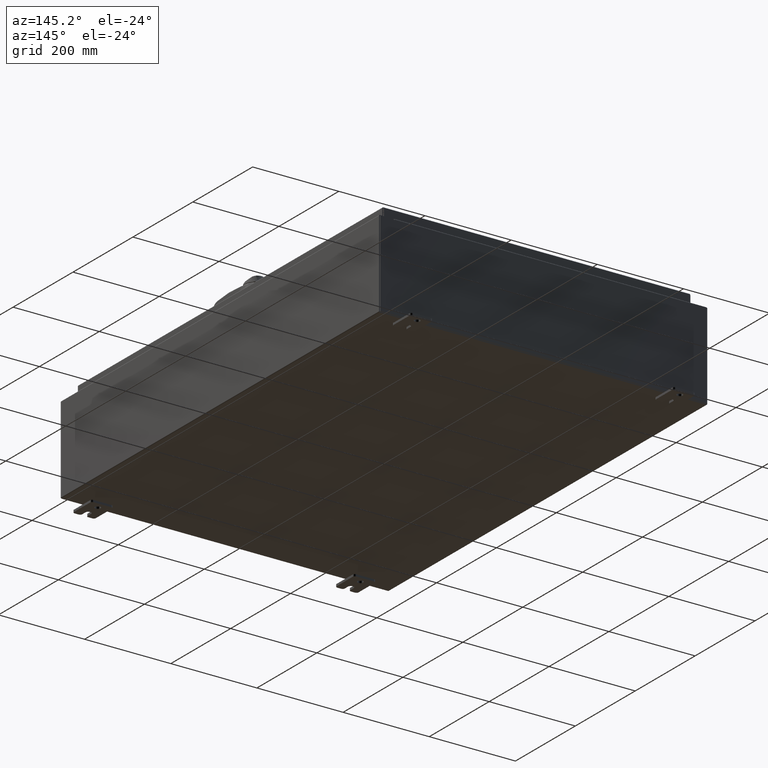
[diagram: clean part render]
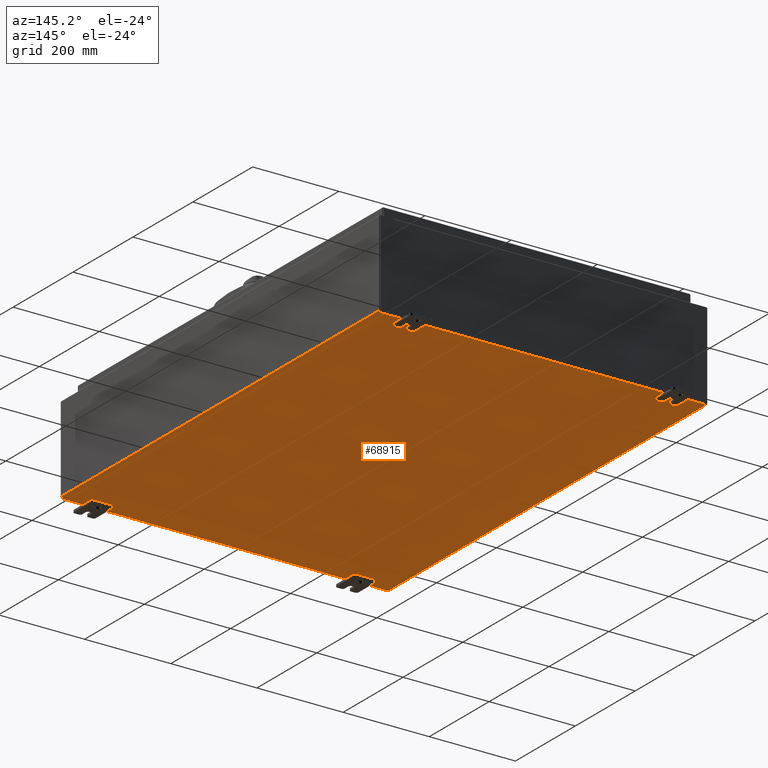
[diagram: same view with one face highlighted and labeled with its STEP entity id]
A machine part, auxiliary view. The second image highlights one B-rep face of the part: STEP entity #68915.
In plain terms, the highlighted planar face has unit normal (0, 0, -1).
Its self-contained STEP definition (entity closure, byte-faithful):
#6373 = AXIS2_PLACEMENT_3D ( 'NONE', #63042, #33448, #102973 ) ;
#6896 = LINE ( 'NONE', #59989, #59813 ) ;
#9650 = ORIENTED_EDGE ( 'NONE', *, *, #127551, .F. ) ;
#10395 = DIRECTION ( 'NONE',  ( -1.000000000000000000, -0.0000000000000000000, -0.0000000000000000000 ) ) ;
#13107 = CARTESIAN_POINT ( 'NONE',  ( -14.99999999999999800, -20.92529999999999300, -0.07470000000000000300 ) ) ;
#14148 = VERTEX_POINT ( 'NONE', #56274 ) ;
#16823 = DIRECTION ( 'NONE',  ( -0.0000000000000000000, 1.000000000000000000, -0.0000000000000000000 ) ) ;
#19822 = VECTOR ( 'NONE', #16823, 39.37007874015748100 ) ;
#21956 = EDGE_CURVE ( 'NONE', #55443, #94158, #6896, .T. ) ;
#25349 = CARTESIAN_POINT ( 'NONE',  ( -14.91229999999999800, -20.92529999999998600, -0.07469999999999994700 ) ) ;
#28932 = CARTESIAN_POINT ( 'NONE',  ( 14.91230000000000200, 20.92529999999999600, -0.07469999999999714400 ) ) ;
#29607 = ORIENTED_EDGE ( 'NONE', *, *, #21956, .F. ) ;
#33448 = DIRECTION ( 'NONE',  ( 0.0000000000000000000, 0.0000000000000000000, -1.000000000000000000 ) ) ;
#44532 = FACE_OUTER_BOUND ( 'NONE', #66391, .T. ) ;
#46717 = VECTOR ( 'NONE', #48948, 39.37007874015748100 ) ;
#48948 = DIRECTION ( 'NONE',  ( -0.0000000000000000000, -1.000000000000000000, -8.208677865577646300E-017 ) ) ;
#53139 = VECTOR ( 'NONE', #72701, 39.37007874015748100 ) ;
#55443 = VERTEX_POINT ( 'NONE', #93324 ) ;
#56274 = CARTESIAN_POINT ( 'NONE',  ( 14.91230000000000200, -20.92529999999999600, -0.07470000000000000300 ) ) ;
#56379 = CARTESIAN_POINT ( 'NONE',  ( -14.91229999999999800, -20.92529999999998900, -0.07469999999999994700 ) ) ;
#59813 = VECTOR ( 'NONE', #10395, 39.37007874015748100 ) ;
#59989 = CARTESIAN_POINT ( 'NONE',  ( -14.99999999999999800, 20.92530000000000700, -0.07470000000000000300 ) ) ;
#63042 = CARTESIAN_POINT ( 'NONE',  ( 0.0000000000000000000, 0.0000000000000000000, -0.07470000000000000300 ) ) ;
#63616 = CARTESIAN_POINT ( 'NONE',  ( -14.91229999999999800, 20.92530000000000700, -0.07470000000000000300 ) ) ;
#66391 = EDGE_LOOP ( 'NONE', ( #9650, #115696, #29607, #75801 ) ) ;
#68915 = ADVANCED_FACE ( 'NONE', ( #44532 ), #122542, .T. ) ;
#72701 = DIRECTION ( 'NONE',  ( 1.000000000000000000, -1.456985596620940400E-016, 0.0000000000000000000 ) ) ;
#73185 = LINE ( 'NONE', #28932, #46717 ) ;
#75801 = ORIENTED_EDGE ( 'NONE', *, *, #97382, .T. ) ;
#75855 = LINE ( 'NONE', #56379, #19822 ) ;
#76469 = LINE ( 'NONE', #13107, #53139 ) ;
#82370 = EDGE_CURVE ( 'NONE', #88525, #94158, #75855, .T. ) ;
#88525 = VERTEX_POINT ( 'NONE', #25349 ) ;
#93324 = CARTESIAN_POINT ( 'NONE',  ( 14.91230000000000200, 20.92529999999999300, -0.07469999999999714400 ) ) ;
#94158 = VERTEX_POINT ( 'NONE', #63616 ) ;
#97382 = EDGE_CURVE ( 'NONE', #55443, #14148, #73185, .T. ) ;
#102973 = DIRECTION ( 'NONE',  ( -1.000000000000000000, 0.0000000000000000000, -0.0000000000000000000 ) ) ;
#115696 = ORIENTED_EDGE ( 'NONE', *, *, #82370, .T. ) ;
#122542 = PLANE ( 'NONE',  #6373 ) ;
#127551 = EDGE_CURVE ( 'NONE', #88525, #14148, #76469, .T. ) ;